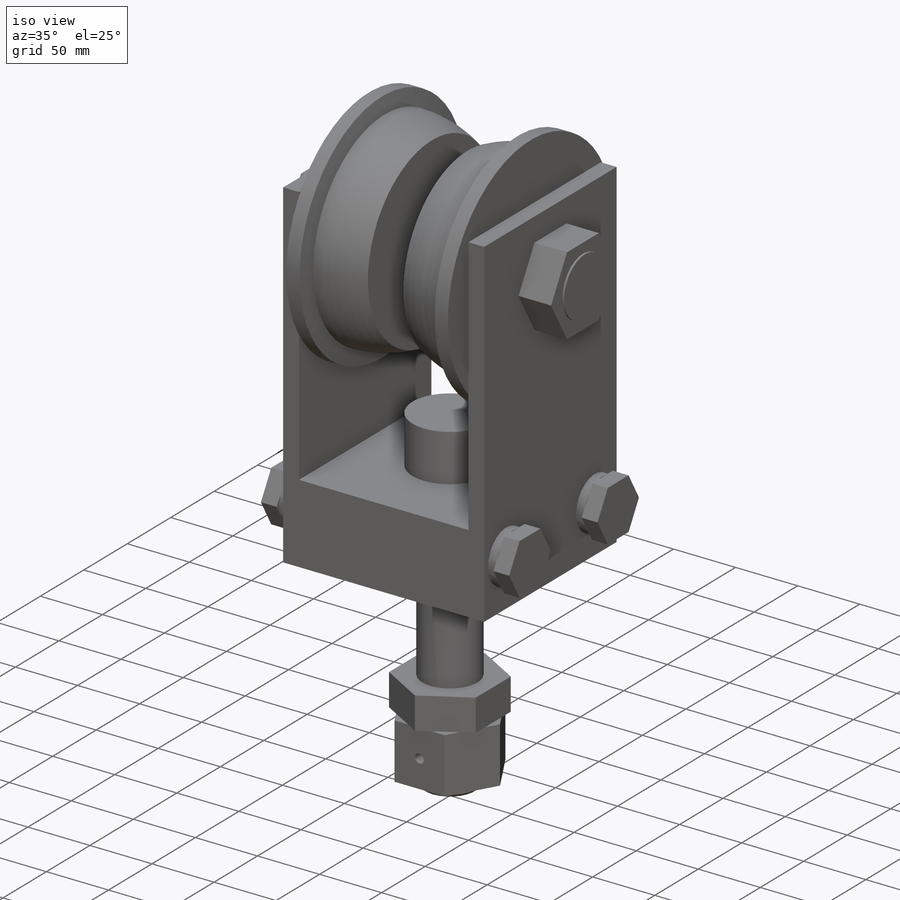
[diagram: iso view]
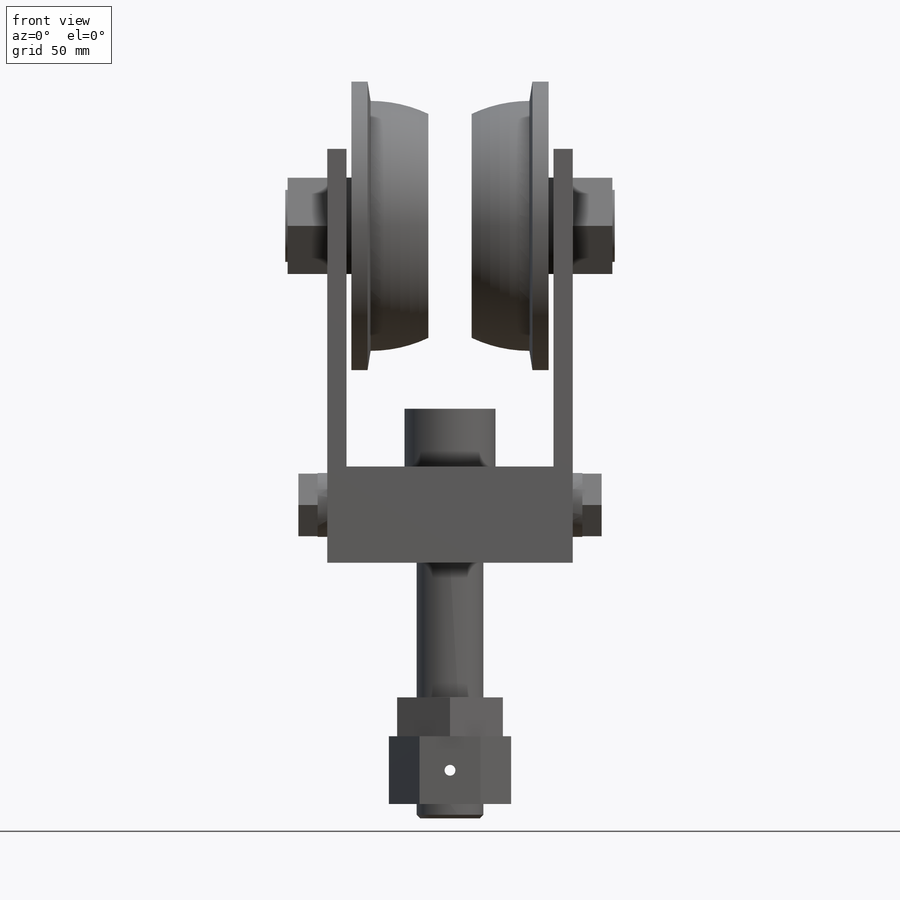
[diagram: front view]
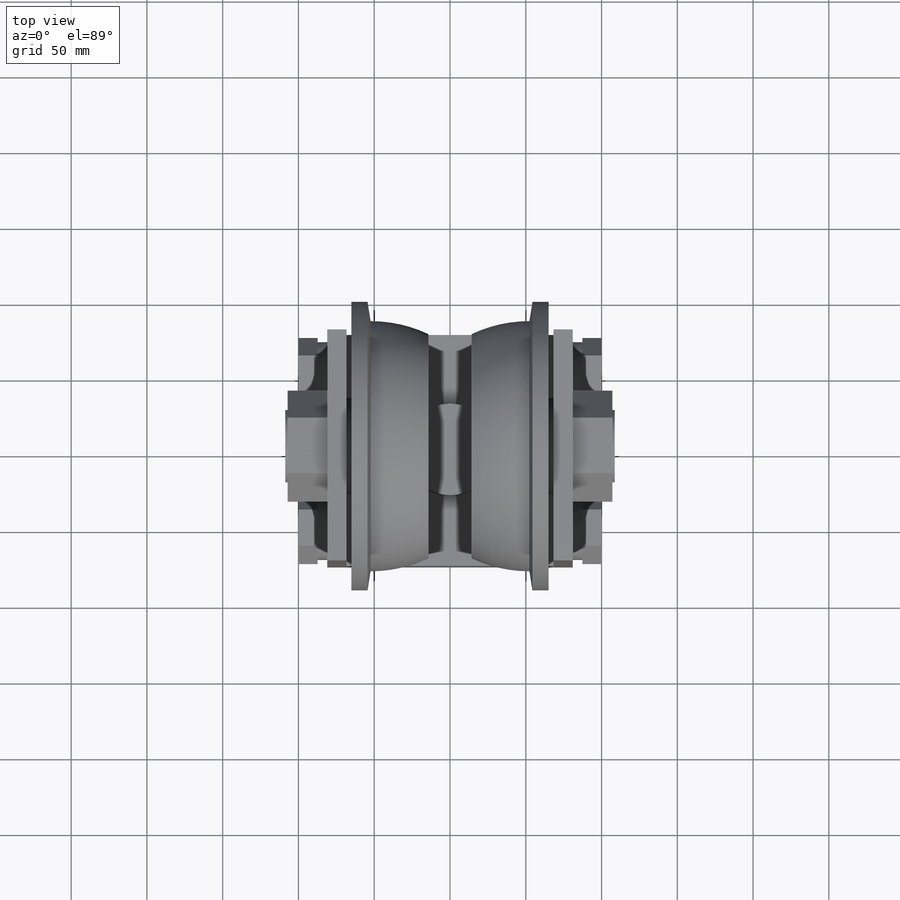
[diagram: top view]
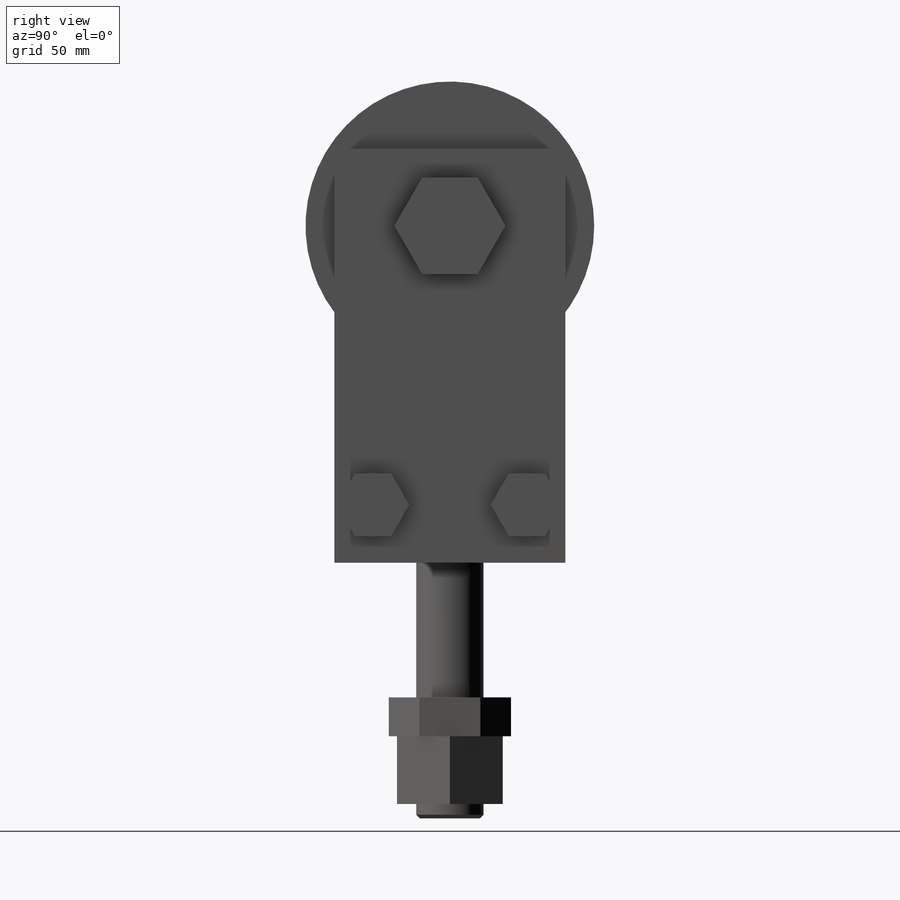
[diagram: right view]
SOLIDWORKS PART (.sldprt)
format: sldprt  version: not decoded by parser v0  size: 881,152 bytes
history: native  units: mm
features: sketch x14, extrude x12, plane x10, mirror x3, material x1, chamfer x1, revolve x1, cut_extrude x1 (+11 scaffold rows collapsed)
feature tree (54):
  scaffold x11  (default folders/planes/origin — collapsed)
  material  "Material <not specified>"
  plane  "Z PLANE"  Offset=0mm
  plane  "YOKE BOTTOM"  Offset=0mm
  plane  "X PLANE"  Offset=0mm
  sketch  "YOKE CROSS SECTION"  dims[D1=63.5mm D2=152.4mm]
  plane  "1/2 YOKE LENGTH (A)"  Offset=68.2625mm
  extrude  "YOKE"  [1 undecoded]
  sketch  "SIDEPLATE PROFILE"  dims[D1=273.05mm]
  plane  "WHEEL HEIGHT"  Offset=222.25mm
  plane  "SCREW LOCATION X"  Offset=50.8mm
  plane  "SCREW LOCATION Y"  Offset=38.1mm
  extrude  "SIDEPLATE"  Depth=12.7mm
  sketch  "WHEEL PIN NUT PROFILE"  dims[D1=63.5mm]
  extrude  "WHEEL PIN NUT"  Depth=26.19375mm
  sketch  "WHEEL PIN PROJECTION PROFILE"  dims[D1=47.625mm]
  extrude  "WHEEL PIN PROJECTION"  Depth=1.5875mm
  sketch  "LOCKNUTS PROFILE"  dims[D1=42.1894mm]
  extrude  "LOCKNUTS"  Depth=6.35mm
  sketch  "SCREWS PROFILE"  dims[D1=41.275mm]
  extrude  "SCREWS"  Depth=12.7mm
  sketch  "PROFILE"  dims[D1=60.325mm]
  extrude  "KING BOLT HEAD"  Depth=38.1mm
  mirror  "Mirror1"
  mirror  "Mirror5"
  plane  "TOP OF NUT"  Offset=88.9mm
  sketch  "DIA."  dims[D1=44.45mm]
  extrude  "KING BOLT"  [1 undecoded]
  sketch  "KING BOLT JAN NUT PROFILE"  dims[D1=69.85mm]
  extrude  "KING BOLT JAM NUT"  Depth=25.6286mm
  sketch  "KING BOLT NUT PROFILE"  dims[c1.D1=69.85mm c1.D2=44.45mm c2.D1=0.0mm]
  extrude  "KING BOLT NUT"  Depth=44.6786mm
  sketch  "Sketch5"
  extrude  "EXTENDED KING BOLT"  Depth=9.525mm
  chamfer  "Chamfer1"  Distance=2.38125mm Angle=45deg
  plane  "MOUNTING REF PLANE"  Offset=34.925mm
  sketch  "Sketch6"  dims[c1.D7=88.9mm c1.D1=31.75mm c1.D2=31.75mm c2.D1=31.75mm c2.D2=95.25mm c2.D3=3.175mm c2.D4=82.55mm c2.D5=53.975mm c2.D6=~73.971853mm c2.D7=53.975mm c2.D8=6.35mm c2.D9=15.875mm c2.D10=15.875mm c3.D1=31.75mm c3.D2=63.5mm c3.D3=53.975mm c3.D4=~73.971853mm c3.D5=82.55mm c3.D6=~12.858307mm c3.D10=15.875mm c4.D6=3.175mm c4.D10=~12.858307mm]
  revolve  "WHEEL"  Angle=360deg
  mirror  "Mirror6"
  sketch  "Sketch7"  dims[D1=~7.14375mm D2=22.225mm]
  cut_extrude  "COTTER PIN HOLE"  [1 undecoded]
  sketch  "Sketch8"  dims[D1=50.8mm D2=60.325mm]
  extrude  "SPACER"  Depth=12.7mm
  plane  "TREAD OF TRACK"  Offset=139.7mm
decode coverage: 25 of 32 modeling features carry decoded parameters
note: ~ marks probable driven/reference dimensions
note: 3 parameter values undecoded
summary: no parameter record found for 3 features
note: suppression state not decoded; provenance and decode notes live in map.json
